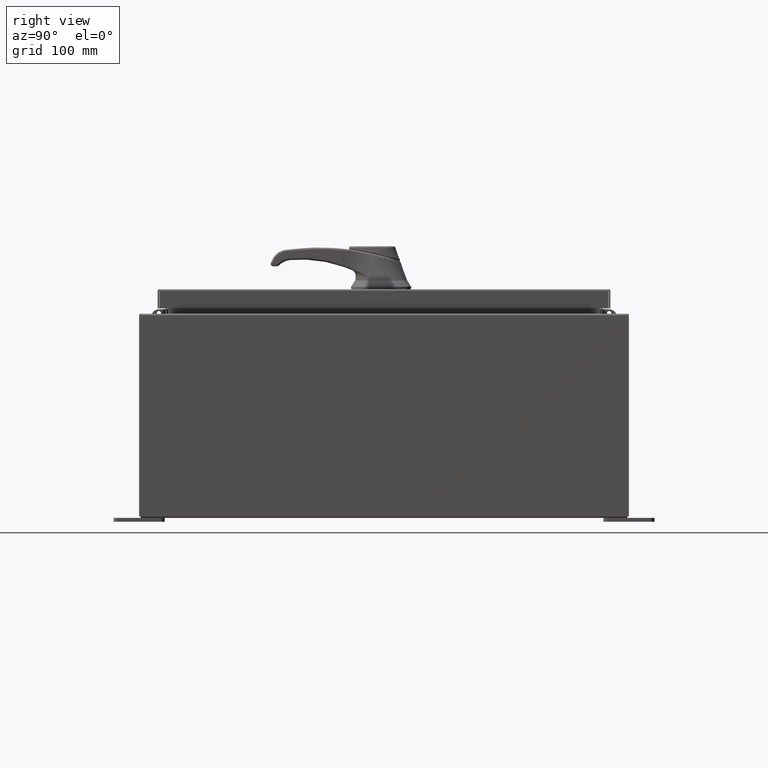
[diagram: clean part render]
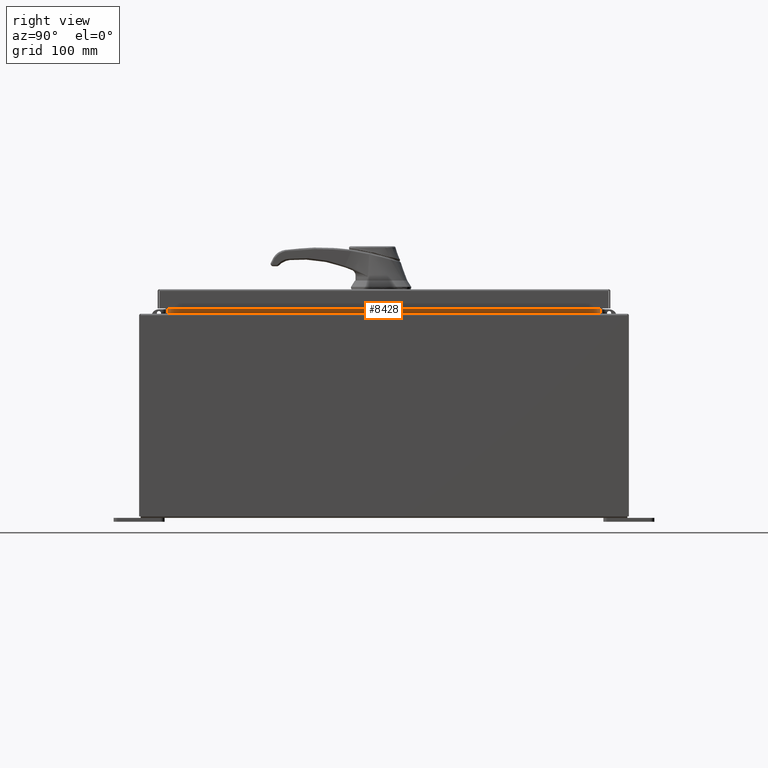
[diagram: same view with one face highlighted and labeled with its STEP entity id]
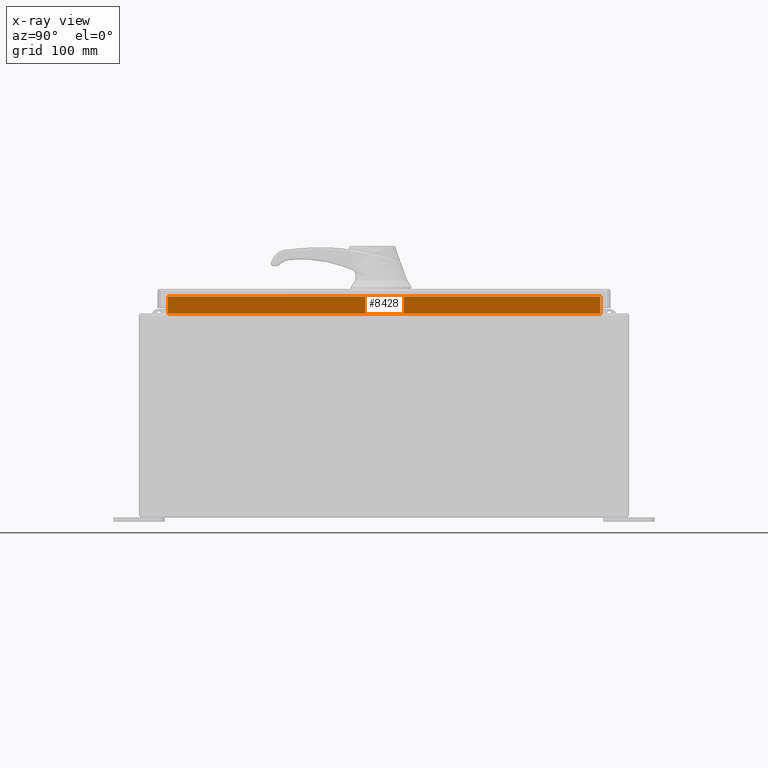
[diagram: x-ray of the same camera — body ghosted, the highlighted face saturated]
A machine part, right view. The second image highlights one B-rep face of the part: STEP entity #8428.
The next image is the same camera in x-ray: the body ghosted, the highlighted face saturated — about 0% of this face is hidden behind the body in this view.
In plain terms, the highlighted planar face has unit normal (1, 0, -0).
Its self-contained STEP definition (entity closure, byte-faithful):
#669 = LINE ( 'NONE', #84712, #47283 ) ;
#3261 = ORIENTED_EDGE ( 'NONE', *, *, #39494, .F. ) ;
#5281 = ORIENTED_EDGE ( 'NONE', *, *, #5636, .F. ) ;
#5636 = EDGE_CURVE ( 'NONE', #22275, #81133, #34750, .T. ) ;
#7074 = CARTESIAN_POINT ( 'NONE',  ( 8.699700000000035500, 10.59374999999999600, 10.76290000000001100 ) ) ;
#8428 = ADVANCED_FACE ( 'NONE', ( #83799 ), #98745, .T. ) ;
#9469 = DIRECTION ( 'NONE',  ( 0.0000000000000000000, 1.000000000000000000, 0.0000000000000000000 ) ) ;
#18229 = CARTESIAN_POINT ( 'NONE',  ( 8.699700000000035500, -10.59375000000000000, 10.76290000000001100 ) ) ;
#22275 = VERTEX_POINT ( 'NONE', #43148 ) ;
#30419 = AXIS2_PLACEMENT_3D ( 'NONE', #80489, #61536, #80620 ) ;
#32073 = CARTESIAN_POINT ( 'NONE',  ( 8.699700000000037300, -10.59375000000000000, 10.85060000000001100 ) ) ;
#34750 = LINE ( 'NONE', #32073, #52588 ) ;
#39494 = EDGE_CURVE ( 'NONE', #70405, #93102, #669, .T. ) ;
#41026 = DIRECTION ( 'NONE',  ( -2.361913319930193300E-015, -0.0000000000000000000, -1.000000000000000000 ) ) ;
#43148 = CARTESIAN_POINT ( 'NONE',  ( 8.699700000000035500, -10.59374999999999800, 9.938300000000008800 ) ) ;
#47283 = VECTOR ( 'NONE', #41026, 39.37007874015748100 ) ;
#47490 = ORIENTED_EDGE ( 'NONE', *, *, #75791, .F. ) ;
#47580 = VECTOR ( 'NONE', #83718, 39.37007874015748100 ) ;
#52588 = VECTOR ( 'NONE', #101490, 39.37007874015748100 ) ;
#53113 = LINE ( 'NONE', #74835, #47580 ) ;
#61536 = DIRECTION ( 'NONE',  ( 1.000000000000000000, 0.0000000000000000000, -2.361913319930193300E-015 ) ) ;
#70405 = VERTEX_POINT ( 'NONE', #7074 ) ;
#71957 = VECTOR ( 'NONE', #9469, 39.37007874015748100 ) ;
#74835 = CARTESIAN_POINT ( 'NONE',  ( 8.699700000000035500, 10.59374999999999600, 9.938300000000008800 ) ) ;
#75791 = EDGE_CURVE ( 'NONE', #81133, #70405, #95338, .T. ) ;
#76260 = CARTESIAN_POINT ( 'NONE',  ( 8.699700000000037300, -10.59375000000000000, 10.76290000000001100 ) ) ;
#80489 = CARTESIAN_POINT ( 'NONE',  ( 8.699700000000012400, 0.0000000000000000000, -2.054793730939673200E-014 ) ) ;
#80620 = DIRECTION ( 'NONE',  ( -2.361913319930193300E-015, 0.0000000000000000000, -1.000000000000000000 ) ) ;
#81133 = VERTEX_POINT ( 'NONE', #76260 ) ;
#83718 = DIRECTION ( 'NONE',  ( 1.031494227696241200E-016, -1.000000000000000000, 1.031494227696241200E-016 ) ) ;
#83799 = FACE_OUTER_BOUND ( 'NONE', #98345, .T. ) ;
#84712 = CARTESIAN_POINT ( 'NONE',  ( 8.699700000000035500, 10.59374999999999600, 9.925300000000008900 ) ) ;
#91866 = CARTESIAN_POINT ( 'NONE',  ( 8.699700000000035500, 10.59374999999999600, 9.938300000000008800 ) ) ;
#93102 = VERTEX_POINT ( 'NONE', #91866 ) ;
#95338 = LINE ( 'NONE', #18229, #71957 ) ;
#98345 = EDGE_LOOP ( 'NONE', ( #3261, #47490, #5281, #102044 ) ) ;
#98745 = PLANE ( 'NONE',  #30419 ) ;
#101490 = DIRECTION ( 'NONE',  ( 2.361913319930198800E-015, -0.0000000000000000000, 1.000000000000000000 ) ) ;
#102044 = ORIENTED_EDGE ( 'NONE', *, *, #108279, .F. ) ;
#108279 = EDGE_CURVE ( 'NONE', #93102, #22275, #53113, .T. ) ;